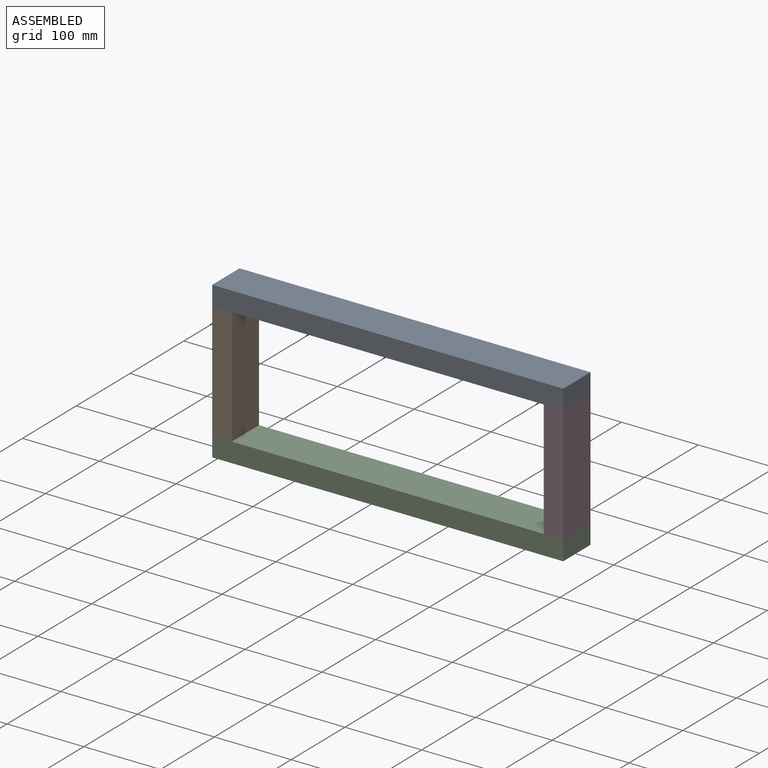
[diagram: assembled view]
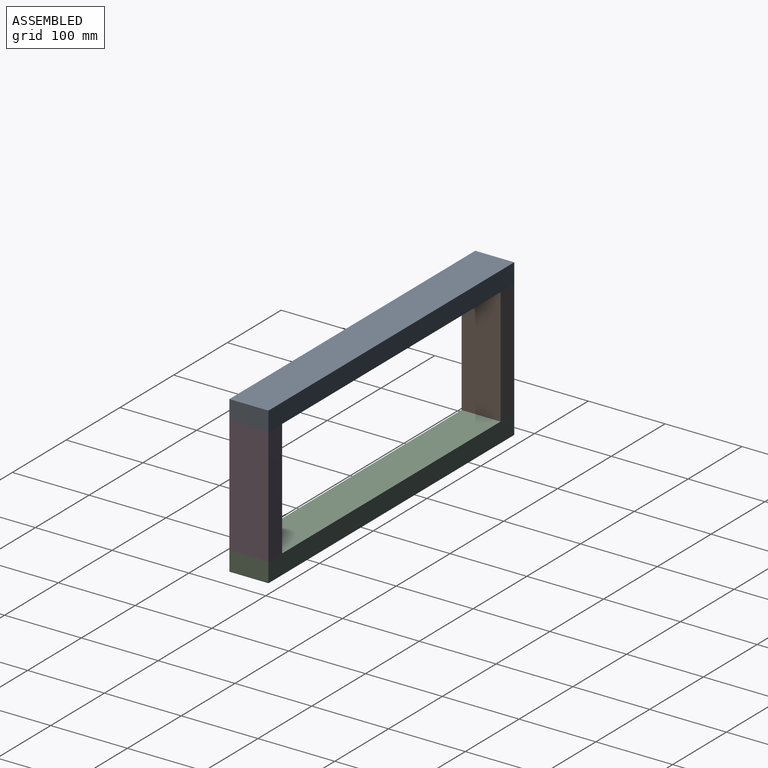
[diagram: assembled view, second angle]
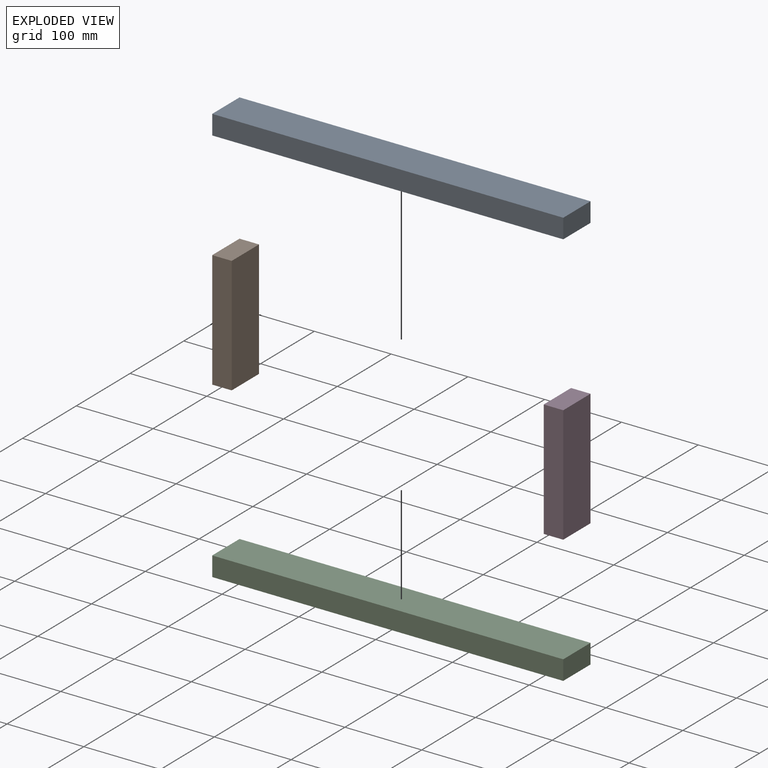
[diagram: exploded view]
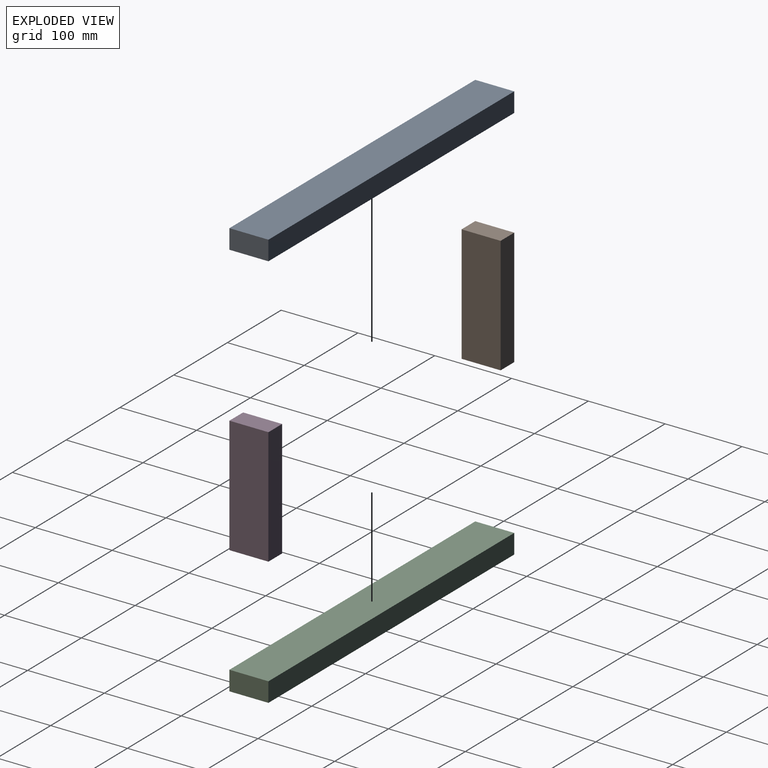
[diagram: exploded view, second angle]
ASSEMBLY  parts=4 mates=9
PART A: 6 faces, bbox 457.2x50.8x25.4 mm
  f0: plane 50.8x25.4mm, normal (-1,0,0), area 1290.3mm2, adj f1,f3,f4,f5
  f1: plane 457.2x50.8mm, normal (0,0,-1), area 23225.8mm2, adj f0,f2,f4,f5
  f2: plane 50.8x25.4mm, normal (1,0,0), area 1290.3mm2, adj f1,f3,f4,f5
  f3: plane 457.2x50.8mm, normal (0,0,1), area 23225.8mm2, adj f0,f2,f4,f5
  f4: plane 457.2x25.4mm, normal (0,-1,0), area 11612.9mm2, adj f0,f1,f2,f3
  f5: plane 457.2x25.4mm, normal (0,1,0), area 11612.9mm2, adj f0,f1,f2,f3
PART B: 6 faces, bbox 152.4x50.8x25.4 mm
  f0: plane 50.8x25.4mm, normal (-1,0,0), area 1290.3mm2, adj f1,f3,f4,f5
  f1: plane 152.4x50.8mm, normal (0,0,-1), area 7741.9mm2, adj f0,f2,f4,f5
  f2: plane 50.8x25.4mm, normal (1,0,0), area 1290.3mm2, adj f1,f3,f4,f5
  f3: plane 152.4x50.8mm, normal (0,0,1), area 7741.9mm2, adj f0,f2,f4,f5
  f4: plane 152.4x25.4mm, normal (0,-1,0), area 3871mm2, adj f0,f1,f2,f3
  f5: plane 152.4x25.4mm, normal (0,1,0), area 3871mm2, adj f0,f1,f2,f3
PART C: same geometry as A
PART D: same geometry as B
PLACE A t=(175.92,-33.16,49.26)mm
PLACE B rot(axis=(0,-1,0),90deg) t=(201.32,-33.16,-103.14)mm
PLACE C t=(175.92,-33.16,-128.54)mm
PLACE D rot(axis=(0,-1,0),90deg) t=(633.12,-33.16,-103.14)mm
MATE planar C.f5 <-> B.f5  axis (0,1,0) through (404.52,-33.16,-115.84)mm
MATE planar A.f2 <-> D.f1  axis (1,0,0) through (633.12,-58.56,61.96)mm
MATE planar B.f2 <-> A.f1  axis (0,0,1) through (175.92,-58.56,49.26)mm
MATE planar C.f3 <-> D.f0  axis (0,0,1) through (633.12,-58.56,-103.14)mm
MATE planar A.f5 <-> D.f5  axis (0,1,0) through (404.52,-33.16,61.96)mm
MATE planar A.f1 <-> D.f2  axis (0,0,-1) through (633.12,-58.56,49.26)mm
MATE planar C.f0 <-> B.f3  axis (-1,0,0) through (175.92,-58.56,-115.84)mm
MATE planar D.f1 <-> C.f2  axis (1,0,0) through (633.12,-58.56,-26.94)mm
MATE planar C.f5 <-> D.f5  axis (0,1,0) through (633.12,-33.16,-115.84)mm
